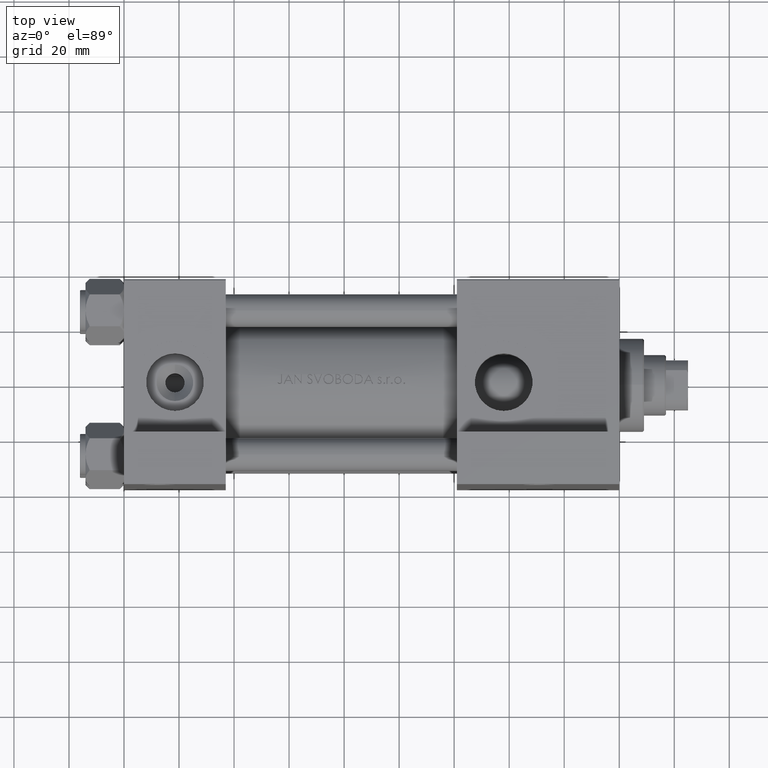
[diagram: clean part render]
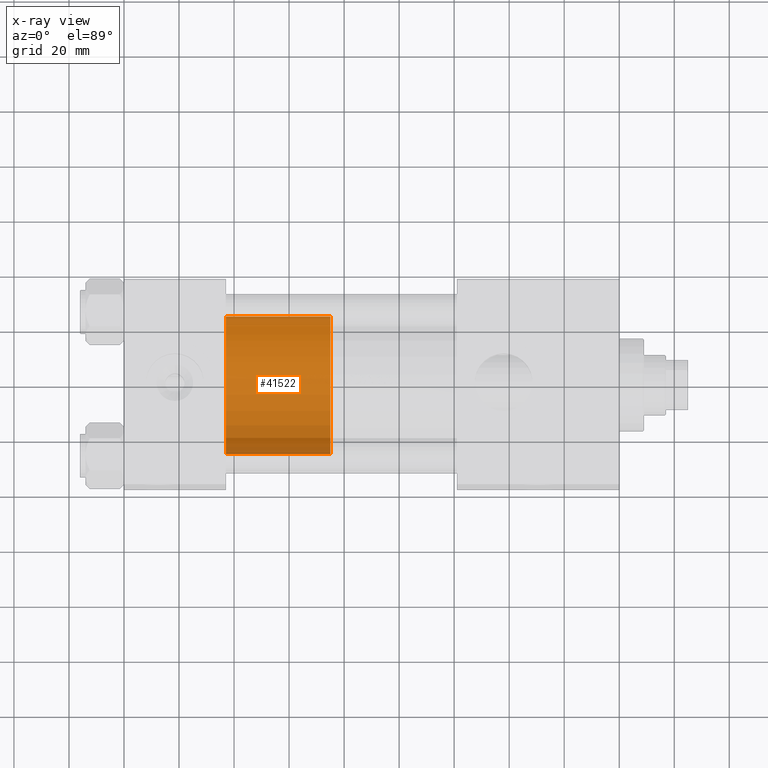
[diagram: x-ray — body ghosted, one internal face saturated and labeled with its STEP entity id]
A machine part, top view, then the same camera in x-ray: the body is ghosted and one INTERNAL B-rep face — a face not visible from any outside direction — is saturated and labeled: STEP entity #41522.
In plain terms, the highlighted cylindrical surface (partial cylindrical patch) has radius 25 mm, axis along (-1, 0, 0).
Its self-contained STEP definition (entity closure, byte-faithful):
#582 = ORIENTED_EDGE ( 'NONE', *, *, #41921, .F. ) ;
#1297 = LINE ( 'NONE', #1783, #44182 ) ;
#1600 = VECTOR ( 'NONE', #31793, 1000.000000000000000 ) ;
#1783 = CARTESIAN_POINT ( 'NONE',  ( -25.00000000000000000, 0.000000000000000000, 38.00000000000000000 ) ) ;
#1963 = EDGE_CURVE ( 'NONE', #28843, #13326, #37997, .T. ) ;
#1989 = DIRECTION ( 'NONE',  ( -1.000000000000000000, 0.000000000000000000, 0.000000000000000000 ) ) ;
#3391 = CARTESIAN_POINT ( 'NONE',  ( -25.00000000000000000, 0.000000000000000000, 38.00000000000000000 ) ) ;
#5150 = LINE ( 'NONE', #42258, #1600 ) ;
#5720 = CYLINDRICAL_SURFACE ( 'NONE', #11425, 25.00000000000000000 ) ;
#7092 = CARTESIAN_POINT ( 'NONE',  ( 0.000000000000000000, 0.000000000000000000, 38.00000000000000000 ) ) ;
#7208 = EDGE_CURVE ( 'NONE', #20907, #28843, #5150, .T. ) ;
#7251 = ORIENTED_EDGE ( 'NONE', *, *, #7208, .T. ) ;
#11425 = AXIS2_PLACEMENT_3D ( 'NONE', #43314, #24389, #1989 ) ;
#12075 = EDGE_LOOP ( 'NONE', ( #582, #7251, #17074, #19132 ) ) ;
#12240 = CIRCLE ( 'NONE', #14631, 25.00000000000000000 ) ;
#13326 = VERTEX_POINT ( 'NONE', #37232 ) ;
#13460 = VERTEX_POINT ( 'NONE', #3391 ) ;
#14631 = AXIS2_PLACEMENT_3D ( 'NONE', #7092, #17803, #33729 ) ;
#17074 = ORIENTED_EDGE ( 'NONE', *, *, #1963, .T. ) ;
#17803 = DIRECTION ( 'NONE',  ( 0.000000000000000000, 0.000000000000000000, 1.000000000000000000 ) ) ;
#19132 = ORIENTED_EDGE ( 'NONE', *, *, #46446, .F. ) ;
#20907 = VERTEX_POINT ( 'NONE', #25125 ) ;
#24389 = DIRECTION ( 'NONE',  ( -0.000000000000000000, -0.000000000000000000, -1.000000000000000000 ) ) ;
#25125 = CARTESIAN_POINT ( 'NONE',  ( 25.00000000000000000, 3.061616997868383043E-15, 38.00000000000000000 ) ) ;
#28362 = FACE_OUTER_BOUND ( 'NONE', #12075, .T. ) ;
#28843 = VERTEX_POINT ( 'NONE', #33696 ) ;
#31793 = DIRECTION ( 'NONE',  ( -0.000000000000000000, -0.000000000000000000, -1.000000000000000000 ) ) ;
#33696 = CARTESIAN_POINT ( 'NONE',  ( 25.00000000000000000, 3.061616997868383043E-15, 0.000000000000000000 ) ) ;
#33729 = DIRECTION ( 'NONE',  ( 1.000000000000000000, 0.000000000000000000, 0.000000000000000000 ) ) ;
#34913 = DIRECTION ( 'NONE',  ( -0.000000000000000000, -0.000000000000000000, -1.000000000000000000 ) ) ;
#36727 = DIRECTION ( 'NONE',  ( 1.000000000000000000, 0.000000000000000000, 0.000000000000000000 ) ) ;
#37232 = CARTESIAN_POINT ( 'NONE',  ( -25.00000000000000000, 0.000000000000000000, 0.000000000000000000 ) ) ;
#37718 = CARTESIAN_POINT ( 'NONE',  ( 0.000000000000000000, 0.000000000000000000, 0.000000000000000000 ) ) ;
#37997 = CIRCLE ( 'NONE', #45146, 25.00000000000000000 ) ;
#40458 = DIRECTION ( 'NONE',  ( 0.000000000000000000, 0.000000000000000000, 1.000000000000000000 ) ) ;
#41522 = ADVANCED_FACE ( 'NONE', ( #28362 ), #5720, .T. ) ;
#41921 = EDGE_CURVE ( 'NONE', #20907, #13460, #12240, .T. ) ;
#42258 = CARTESIAN_POINT ( 'NONE',  ( 25.00000000000000000, 3.061616997868383043E-15, 38.00000000000000000 ) ) ;
#43314 = CARTESIAN_POINT ( 'NONE',  ( 0.000000000000000000, 0.000000000000000000, 38.00000000000000000 ) ) ;
#44182 = VECTOR ( 'NONE', #34913, 1000.000000000000000 ) ;
#45146 = AXIS2_PLACEMENT_3D ( 'NONE', #37718, #40458, #36727 ) ;
#46446 = EDGE_CURVE ( 'NONE', #13460, #13326, #1297, .T. ) ;